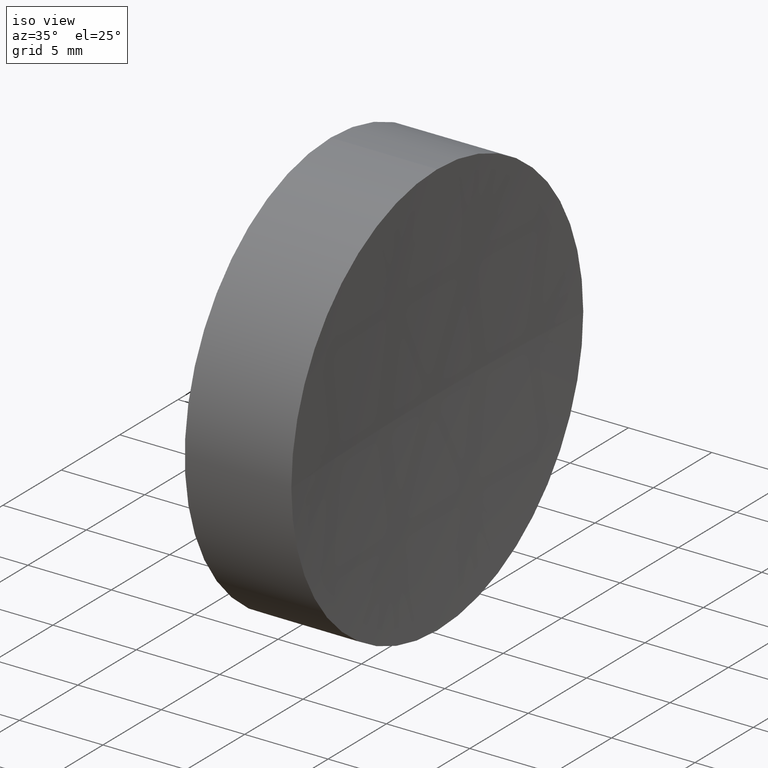
[diagram: clean part render]
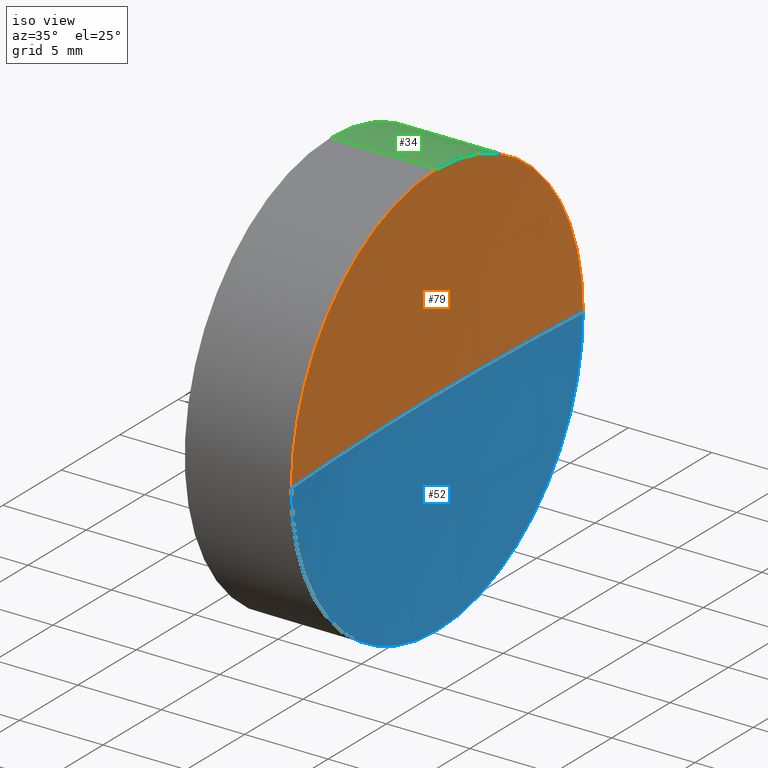
[diagram: same view with three faces highlighted in distinct colors, each labeled with its STEP entity id]
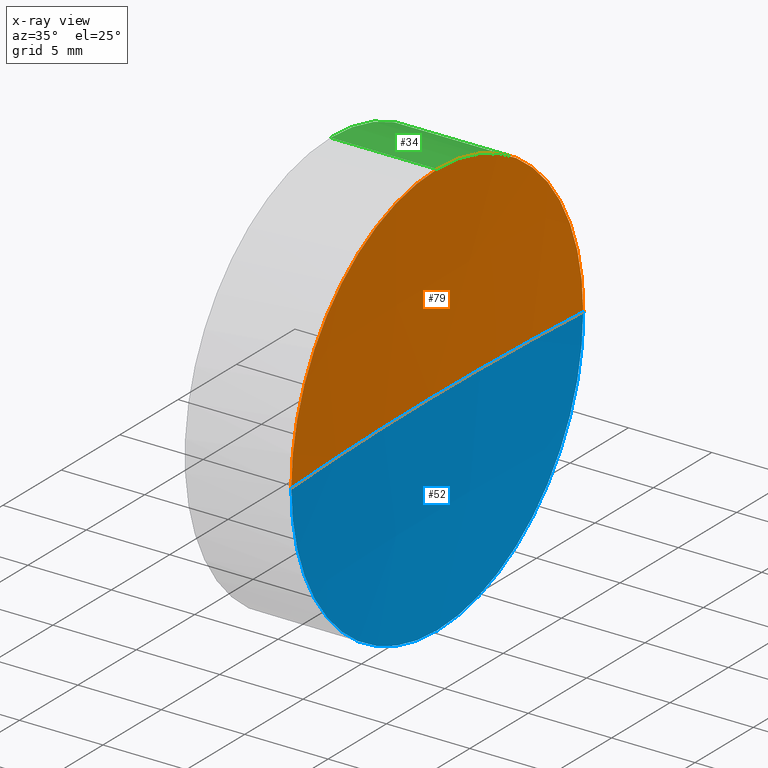
[diagram: x-ray of the same camera — body ghosted, the three highlighted faces saturated]
A machine part, iso view with three faces highlighted in distinct colors.
The next image is the same camera in x-ray (body ghosted, the three faces saturated) — at least one of them is partly hidden behind the body in this view.
Their STEP definitions:

[orange] entity #79 — the highlighted spherical surface has radius 200 mm.
#4 = SPHERICAL_SURFACE ( 'NONE', #62, 200.0000000000000000 ) ;
#6 = AXIS2_PLACEMENT_3D ( 'NONE', #44, #25, #159 ) ;
#13 = VERTEX_POINT ( 'NONE', #40 ) ;
#17 = DIRECTION ( 'NONE',  ( 0.0000000000000000000, 0.0000000000000000000, -1.000000000000000000 ) ) ;
#22 = CARTESIAN_POINT ( 'NONE',  ( 321.0926543351062000, 69.37802112337263300, 0.0000000000000000000 ) ) ;
#25 = DIRECTION ( 'NONE',  ( 0.0000000000000000000, -1.224646799147353200E-016, 1.000000000000000000 ) ) ;
#27 = EDGE_CURVE ( 'NONE', #54, #122, #82, .T. ) ;
#35 = CARTESIAN_POINT ( 'NONE',  ( 321.0926543351062000, 69.37802112337263300, 0.0000000000000000000 ) ) ;
#40 = CARTESIAN_POINT ( 'NONE',  ( 121.4836615517148000, 56.87802112337231400, 0.0000000000000000000 ) ) ;
#43 = CARTESIAN_POINT ( 'NONE',  ( 121.0926543351061900, 69.37802112337261900, 0.0000000000000000000 ) ) ;
#44 = CARTESIAN_POINT ( 'NONE',  ( 321.0926543351062000, 69.37802112337263300, 0.0000000000000000000 ) ) ;
#50 = DIRECTION ( 'NONE',  ( 0.0000000000000000000, 0.0000000000000000000, 1.000000000000000000 ) ) ;
#54 = VERTEX_POINT ( 'NONE', #186 ) ;
#56 = DIRECTION ( 'NONE',  ( -1.000000000000000000, -0.0000000000000000000, -0.0000000000000000000 ) ) ;
#58 = EDGE_CURVE ( 'NONE', #122, #74, #134, .T. ) ;
#62 = AXIS2_PLACEMENT_3D ( 'NONE', #35, #90, #165 ) ;
#65 = CARTESIAN_POINT ( 'NONE',  ( 121.4836615517148000, 81.87802112337274700, 1.530808498934207300E-015 ) ) ;
#67 = ORIENTED_EDGE ( 'NONE', *, *, #58, .F. ) ;
#71 = EDGE_LOOP ( 'NONE', ( #67, #176, #163, #149 ) ) ;
#72 = AXIS2_PLACEMENT_3D ( 'NONE', #22, #17, #173 ) ;
#74 = VERTEX_POINT ( 'NONE', #43 ) ;
#79 = ADVANCED_FACE ( 'NONE', ( #102 ), #4, .F. ) ;
#82 = CIRCLE ( 'NONE', #110, 12.50000000000002500 ) ;
#90 = DIRECTION ( 'NONE',  ( 0.0000000000000000000, 0.0000000000000000000, 1.000000000000000000 ) ) ;
#91 = CIRCLE ( 'NONE', #72, 200.0000000000000000 ) ;
#100 = DIRECTION ( 'NONE',  ( -1.000000000000000000, -0.0000000000000000000, -0.0000000000000000000 ) ) ;
#102 = FACE_OUTER_BOUND ( 'NONE', #71, .T. ) ;
#110 = AXIS2_PLACEMENT_3D ( 'NONE', #143, #56, #114 ) ;
#114 = DIRECTION ( 'NONE',  ( 0.0000000000000000000, 0.0000000000000000000, 1.000000000000000000 ) ) ;
#122 = VERTEX_POINT ( 'NONE', #65 ) ;
#126 = AXIS2_PLACEMENT_3D ( 'NONE', #135, #100, #50 ) ;
#134 = CIRCLE ( 'NONE', #6, 200.0000000000000000 ) ;
#135 = CARTESIAN_POINT ( 'NONE',  ( 121.4836615517147900, 69.37802112337243400, 0.0000000000000000000 ) ) ;
#140 = CIRCLE ( 'NONE', #126, 12.50000000000002500 ) ;
#141 = EDGE_CURVE ( 'NONE', #13, #74, #91, .T. ) ;
#143 = CARTESIAN_POINT ( 'NONE',  ( 121.4836615517147900, 69.37802112337243400, 0.0000000000000000000 ) ) ;
#149 = ORIENTED_EDGE ( 'NONE', *, *, #141, .T. ) ;
#159 = DIRECTION ( 'NONE',  ( 0.0000000000000000000, -1.000000000000000000, -1.224646799147353200E-016 ) ) ;
#161 = EDGE_CURVE ( 'NONE', #13, #54, #140, .T. ) ;
#163 = ORIENTED_EDGE ( 'NONE', *, *, #161, .F. ) ;
#165 = DIRECTION ( 'NONE',  ( 0.0000000000000000000, -1.000000000000000000, 0.0000000000000000000 ) ) ;
#173 = DIRECTION ( 'NONE',  ( -1.000000000000000000, 0.0000000000000000000, 0.0000000000000000000 ) ) ;
#176 = ORIENTED_EDGE ( 'NONE', *, *, #27, .F. ) ;
#186 = CARTESIAN_POINT ( 'NONE',  ( 121.4836615517147900, 69.37802112337243400, 12.50000000000002500 ) ) ;

[blue] entity #52 — the highlighted spherical surface has radius 200 mm.
#2 = CIRCLE ( 'NONE', #115, 12.50000000000002500 ) ;
#6 = AXIS2_PLACEMENT_3D ( 'NONE', #44, #25, #159 ) ;
#9 = VERTEX_POINT ( 'NONE', #94 ) ;
#13 = VERTEX_POINT ( 'NONE', #40 ) ;
#17 = DIRECTION ( 'NONE',  ( 0.0000000000000000000, 0.0000000000000000000, -1.000000000000000000 ) ) ;
#19 = DIRECTION ( 'NONE',  ( 0.0000000000000000000, 0.0000000000000000000, 1.000000000000000000 ) ) ;
#21 = EDGE_LOOP ( 'NONE', ( #157, #151, #180, #184 ) ) ;
#22 = CARTESIAN_POINT ( 'NONE',  ( 321.0926543351062000, 69.37802112337263300, 0.0000000000000000000 ) ) ;
#23 = AXIS2_PLACEMENT_3D ( 'NONE', #166, #103, #19 ) ;
#24 = SPHERICAL_SURFACE ( 'NONE', #92, 200.0000000000000000 ) ;
#25 = DIRECTION ( 'NONE',  ( 0.0000000000000000000, -1.224646799147353200E-016, 1.000000000000000000 ) ) ;
#28 = DIRECTION ( 'NONE',  ( 0.0000000000000000000, 0.0000000000000000000, 1.000000000000000000 ) ) ;
#29 = CIRCLE ( 'NONE', #23, 12.50000000000002500 ) ;
#32 = EDGE_CURVE ( 'NONE', #9, #13, #2, .T. ) ;
#40 = CARTESIAN_POINT ( 'NONE',  ( 121.4836615517148000, 56.87802112337231400, 0.0000000000000000000 ) ) ;
#43 = CARTESIAN_POINT ( 'NONE',  ( 121.0926543351061900, 69.37802112337261900, 0.0000000000000000000 ) ) ;
#44 = CARTESIAN_POINT ( 'NONE',  ( 321.0926543351062000, 69.37802112337263300, 0.0000000000000000000 ) ) ;
#52 = ADVANCED_FACE ( 'NONE', ( #77 ), #24, .F. ) ;
#58 = EDGE_CURVE ( 'NONE', #122, #74, #134, .T. ) ;
#65 = CARTESIAN_POINT ( 'NONE',  ( 121.4836615517148000, 81.87802112337274700, 1.530808498934207300E-015 ) ) ;
#72 = AXIS2_PLACEMENT_3D ( 'NONE', #22, #17, #173 ) ;
#74 = VERTEX_POINT ( 'NONE', #43 ) ;
#77 = FACE_OUTER_BOUND ( 'NONE', #21, .T. ) ;
#78 = EDGE_CURVE ( 'NONE', #122, #9, #29, .T. ) ;
#91 = CIRCLE ( 'NONE', #72, 200.0000000000000000 ) ;
#92 = AXIS2_PLACEMENT_3D ( 'NONE', #96, #28, #97 ) ;
#94 = CARTESIAN_POINT ( 'NONE',  ( 121.4836615517147900, 69.37802112337243400, -12.50000000000002500 ) ) ;
#96 = CARTESIAN_POINT ( 'NONE',  ( 321.0926543351062000, 69.37802112337263300, 0.0000000000000000000 ) ) ;
#97 = DIRECTION ( 'NONE',  ( 0.0000000000000000000, -1.000000000000000000, 0.0000000000000000000 ) ) ;
#103 = DIRECTION ( 'NONE',  ( -1.000000000000000000, -0.0000000000000000000, -0.0000000000000000000 ) ) ;
#115 = AXIS2_PLACEMENT_3D ( 'NONE', #130, #145, #155 ) ;
#122 = VERTEX_POINT ( 'NONE', #65 ) ;
#130 = CARTESIAN_POINT ( 'NONE',  ( 121.4836615517147900, 69.37802112337243400, 0.0000000000000000000 ) ) ;
#134 = CIRCLE ( 'NONE', #6, 200.0000000000000000 ) ;
#141 = EDGE_CURVE ( 'NONE', #13, #74, #91, .T. ) ;
#145 = DIRECTION ( 'NONE',  ( -1.000000000000000000, -0.0000000000000000000, -0.0000000000000000000 ) ) ;
#151 = ORIENTED_EDGE ( 'NONE', *, *, #58, .T. ) ;
#155 = DIRECTION ( 'NONE',  ( 0.0000000000000000000, 0.0000000000000000000, 1.000000000000000000 ) ) ;
#157 = ORIENTED_EDGE ( 'NONE', *, *, #78, .F. ) ;
#159 = DIRECTION ( 'NONE',  ( 0.0000000000000000000, -1.000000000000000000, -1.224646799147353200E-016 ) ) ;
#166 = CARTESIAN_POINT ( 'NONE',  ( 121.4836615517147900, 69.37802112337243400, 0.0000000000000000000 ) ) ;
#173 = DIRECTION ( 'NONE',  ( -1.000000000000000000, 0.0000000000000000000, 0.0000000000000000000 ) ) ;
#180 = ORIENTED_EDGE ( 'NONE', *, *, #141, .F. ) ;
#184 = ORIENTED_EDGE ( 'NONE', *, *, #32, .F. ) ;

[green] entity #34 — the highlighted cylindrical surface (partial cylindrical patch) has radius 12.5 mm, axis along (-1, -0, -0).
#8 = FACE_OUTER_BOUND ( 'NONE', #139, .T. ) ;
#9 = VERTEX_POINT ( 'NONE', #94 ) ;
#11 = DIRECTION ( 'NONE',  ( 0.0000000000000000000, 0.0000000000000000000, 1.000000000000000000 ) ) ;
#14 = AXIS2_PLACEMENT_3D ( 'NONE', #112, #156, #129 ) ;
#18 = EDGE_CURVE ( 'NONE', #39, #109, #119, .T. ) ;
#19 = DIRECTION ( 'NONE',  ( 0.0000000000000000000, 0.0000000000000000000, 1.000000000000000000 ) ) ;
#23 = AXIS2_PLACEMENT_3D ( 'NONE', #166, #103, #19 ) ;
#27 = EDGE_CURVE ( 'NONE', #54, #122, #82, .T. ) ;
#29 = CIRCLE ( 'NONE', #23, 12.50000000000002500 ) ;
#33 = CARTESIAN_POINT ( 'NONE',  ( 115.0926555349195200, 69.37802112337243400, -12.49999999999999600 ) ) ;
#34 = ADVANCED_FACE ( 'NONE', ( #8 ), #162, .T. ) ;
#36 = VECTOR ( 'NONE', #178, 1000.000000000000000 ) ;
#39 = VERTEX_POINT ( 'NONE', #69 ) ;
#41 = VECTOR ( 'NONE', #84, 1000.000000000000000 ) ;
#45 = AXIS2_PLACEMENT_3D ( 'NONE', #125, #183, #11 ) ;
#54 = VERTEX_POINT ( 'NONE', #186 ) ;
#56 = DIRECTION ( 'NONE',  ( -1.000000000000000000, -0.0000000000000000000, -0.0000000000000000000 ) ) ;
#60 = ORIENTED_EDGE ( 'NONE', *, *, #78, .T. ) ;
#65 = CARTESIAN_POINT ( 'NONE',  ( 121.4836615517148000, 81.87802112337274700, 1.530808498934207300E-015 ) ) ;
#66 = EDGE_CURVE ( 'NONE', #54, #39, #154, .T. ) ;
#69 = CARTESIAN_POINT ( 'NONE',  ( 115.0926555349195200, 69.37802112337243400, 12.49999999999999600 ) ) ;
#70 = CARTESIAN_POINT ( 'NONE',  ( 108.9851430021651000, 69.37802112337243400, 12.50000000000001100 ) ) ;
#76 = CARTESIAN_POINT ( 'NONE',  ( 108.9851430021651000, 69.37802112337243400, -12.50000000000001100 ) ) ;
#78 = EDGE_CURVE ( 'NONE', #122, #9, #29, .T. ) ;
#82 = CIRCLE ( 'NONE', #110, 12.50000000000002500 ) ;
#84 = DIRECTION ( 'NONE',  ( -1.000000000000000000, -0.0000000000000000000, -0.0000000000000000000 ) ) ;
#94 = CARTESIAN_POINT ( 'NONE',  ( 121.4836615517147900, 69.37802112337243400, -12.50000000000002500 ) ) ;
#99 = EDGE_CURVE ( 'NONE', #9, #109, #111, .T. ) ;
#103 = DIRECTION ( 'NONE',  ( -1.000000000000000000, -0.0000000000000000000, -0.0000000000000000000 ) ) ;
#109 = VERTEX_POINT ( 'NONE', #33 ) ;
#110 = AXIS2_PLACEMENT_3D ( 'NONE', #143, #56, #114 ) ;
#111 = LINE ( 'NONE', #76, #36 ) ;
#112 = CARTESIAN_POINT ( 'NONE',  ( 108.9851430021651000, 69.37802112337243400, 0.0000000000000000000 ) ) ;
#113 = ORIENTED_EDGE ( 'NONE', *, *, #66, .F. ) ;
#114 = DIRECTION ( 'NONE',  ( 0.0000000000000000000, 0.0000000000000000000, 1.000000000000000000 ) ) ;
#119 = CIRCLE ( 'NONE', #45, 12.49999999999999600 ) ;
#122 = VERTEX_POINT ( 'NONE', #65 ) ;
#123 = ORIENTED_EDGE ( 'NONE', *, *, #18, .F. ) ;
#125 = CARTESIAN_POINT ( 'NONE',  ( 115.0926555349195200, 69.37802112337243400, 0.0000000000000000000 ) ) ;
#128 = ORIENTED_EDGE ( 'NONE', *, *, #27, .T. ) ;
#129 = DIRECTION ( 'NONE',  ( 0.0000000000000000000, 0.0000000000000000000, 1.000000000000000000 ) ) ;
#139 = EDGE_LOOP ( 'NONE', ( #60, #144, #123, #113, #128 ) ) ;
#143 = CARTESIAN_POINT ( 'NONE',  ( 121.4836615517147900, 69.37802112337243400, 0.0000000000000000000 ) ) ;
#144 = ORIENTED_EDGE ( 'NONE', *, *, #99, .T. ) ;
#154 = LINE ( 'NONE', #70, #41 ) ;
#156 = DIRECTION ( 'NONE',  ( -1.000000000000000000, -0.0000000000000000000, -0.0000000000000000000 ) ) ;
#162 = CYLINDRICAL_SURFACE ( 'NONE', #14, 12.50000000000001100 ) ;
#166 = CARTESIAN_POINT ( 'NONE',  ( 121.4836615517147900, 69.37802112337243400, 0.0000000000000000000 ) ) ;
#178 = DIRECTION ( 'NONE',  ( -1.000000000000000000, -0.0000000000000000000, -0.0000000000000000000 ) ) ;
#183 = DIRECTION ( 'NONE',  ( -1.000000000000000000, -0.0000000000000000000, -0.0000000000000000000 ) ) ;
#186 = CARTESIAN_POINT ( 'NONE',  ( 121.4836615517147900, 69.37802112337243400, 12.50000000000002500 ) ) ;